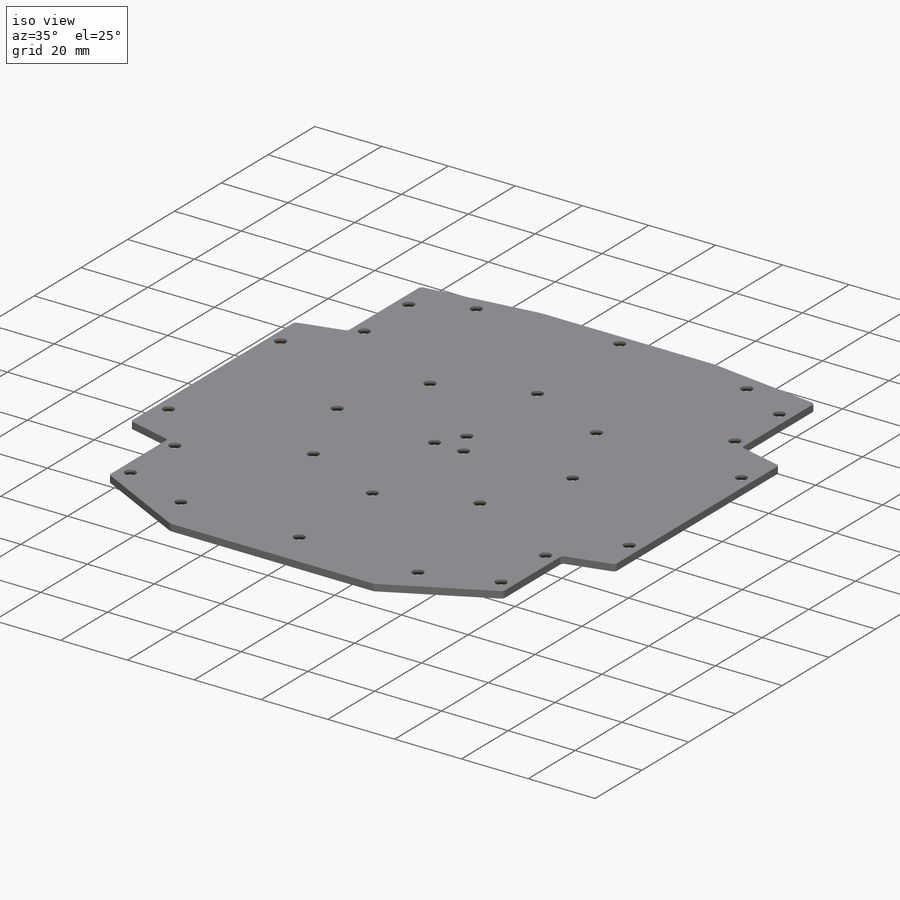
[diagram: iso view]
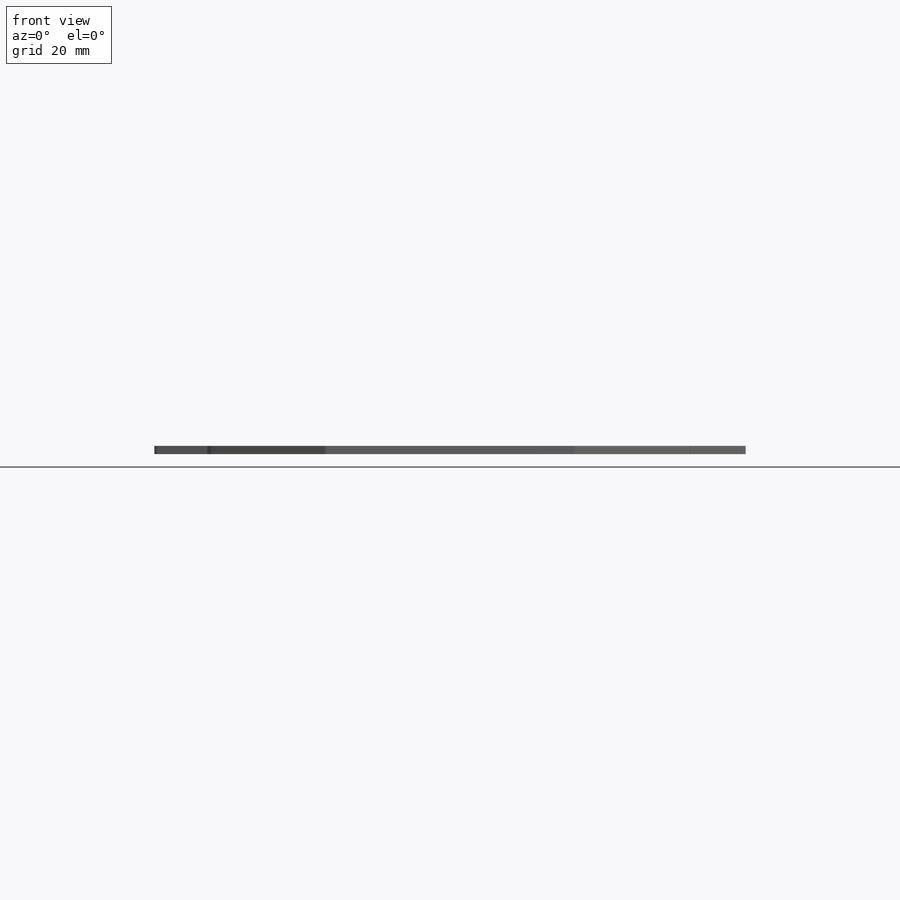
[diagram: front view]
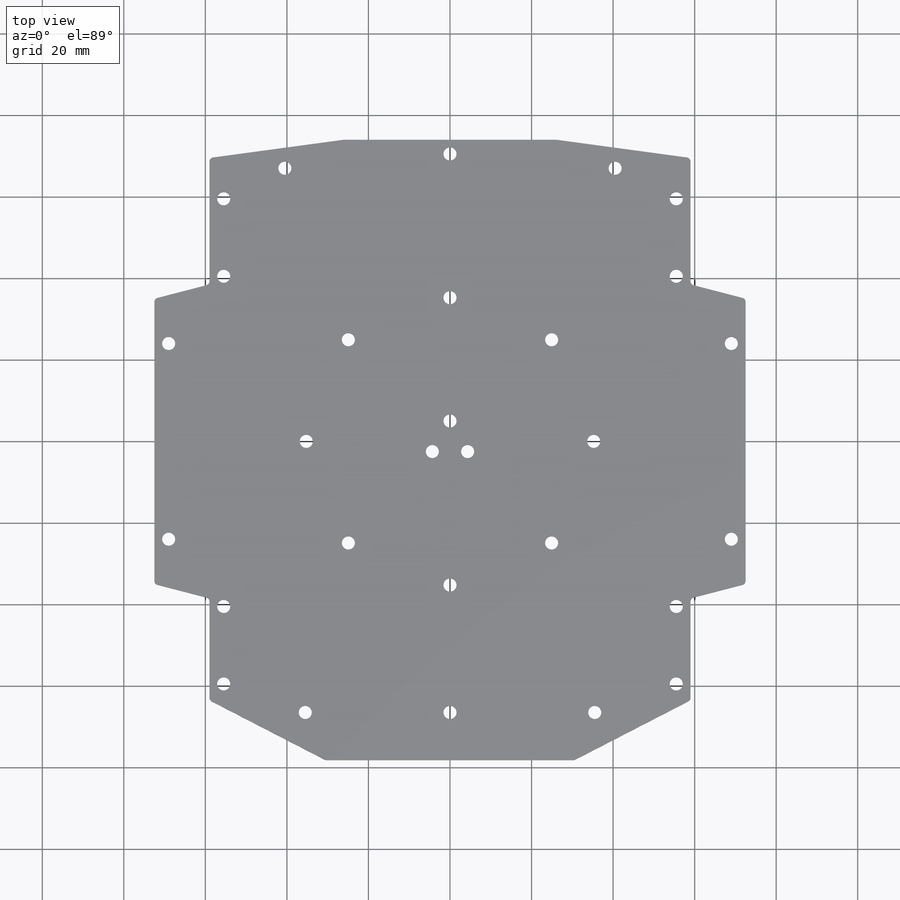
[diagram: top view]
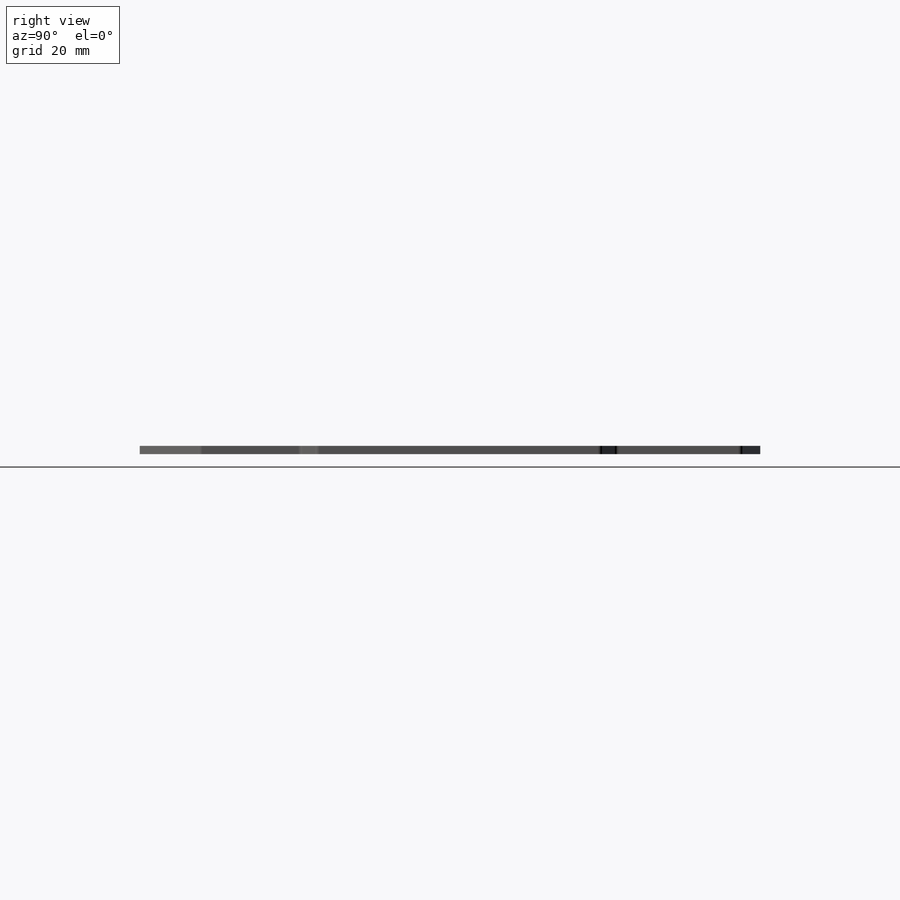
[diagram: right view]
SOLIDWORKS PART (.sldprt)
format: sldprt  version: not decoded by parser v0  size: 412,160 bytes
history: native  units: mm
features: sketch x6, hole x2, material x1, extrude x1, cut_extrude x1, fillet x1 (+11 scaffold rows collapsed)
feature tree (23):
  scaffold x11  (default folders/planes/origin — collapsed)
  material  "7075-T6, Plate (SS)"
  sketch  "Sketch1"  dims[c1.D1=165.0mm c1.D2=161.0mm c1.D3=23.0mm c1.D4=15.5mm c1.D5=50.0mm c1.D6=59.0mm c2.D1=74.0mm c2.D7=76.0mm]
  extrude  "Boss-Extrude1"  Depth=2.032mm
  hole  "CSK for M3 SFHCS1"  Diameter=3.2mm Depth=2.032mm
  sketch  "Sketch3"  dims[c1.D1=35.25mm c1.D3=35.25mm c1.D4=9.0mm c1.D6=9.0mm c2.D4=5.0mm c2.D2=8.0 c2.D5=3.0]
  sketch  "Sketch2"  dims[hole-wizard template sketch: 54 standard entries collapsed; hole parameters kept: c17.Thru Hole Dia.=3.2mm c17.Thru Hole Depth=2.032mm c17.Near C'Sink Dia.=6.0mm c17.D4=~3.666174mm c17.Near C'Sink Angle=90.0deg]
  sketch  "Sketch4"  dims[D1=70.0mm D2=2.0mm D3=50.0mm]
  cut_extrude  "Cut-Extrude1"  [1 undecoded]
  fillet  "Fillet1"  Radius=1mm
  hole  "CSK for M3 SFHCS2"  Diameter=3.2mm Depth=2.032mm
  sketch  "Sketch6"
  sketch  "Sketch5"  dims[hole-wizard template sketch: 54 standard entries collapsed; hole parameters kept: c17.Thru Hole Dia.=3.2mm c17.Thru Hole Depth=2.032mm c17.Near C'Sink Dia.=6.0mm c17.D4=~3.666174mm c17.Near C'Sink Angle=90.0deg]
decode coverage: 9 of 11 modeling features carry decoded parameters
note: ~ marks probable driven/reference dimensions
note: 1 parameter value undecoded
note: suppression state not decoded; provenance and decode notes live in map.json
